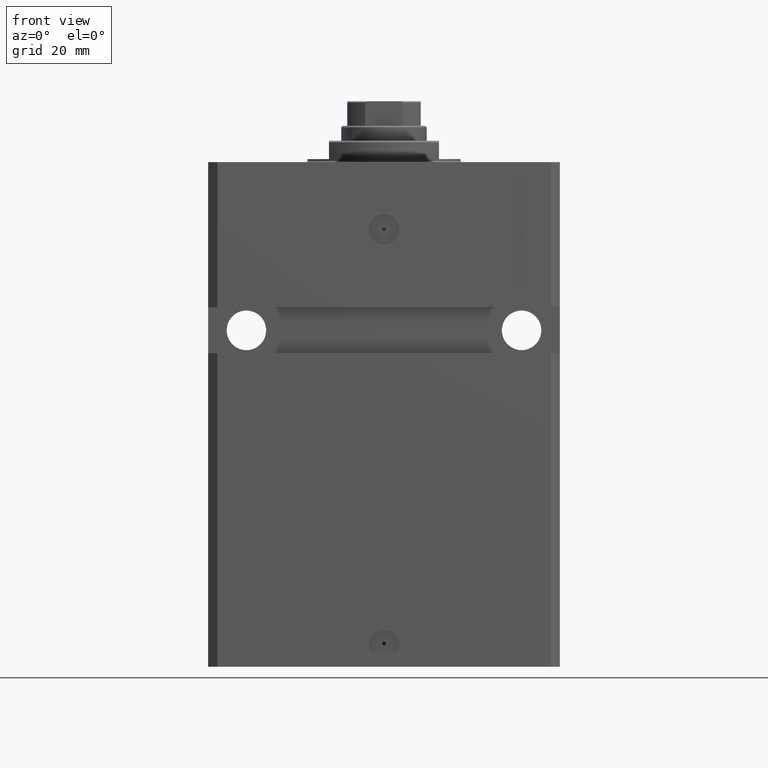
[diagram: clean part render]
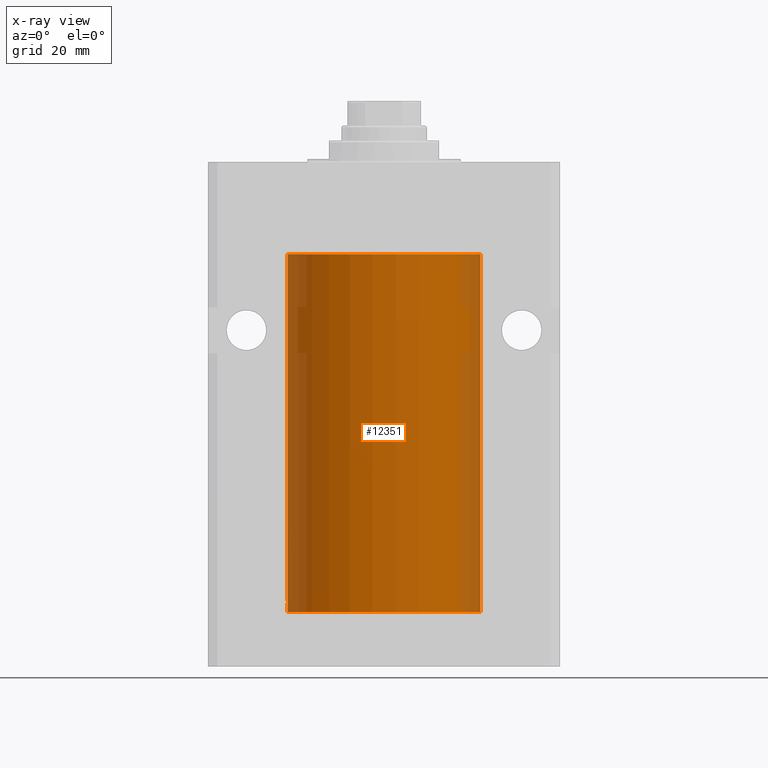
[diagram: x-ray — body ghosted, one internal face saturated and labeled with its STEP entity id]
A machine part, front view, then the same camera in x-ray: the body is ghosted and one INTERNAL B-rep face — a face not visible from any outside direction — is saturated and labeled: STEP entity #12351.
In plain terms, the highlighted cylindrical surface (partial cylindrical patch) has radius 31.5 mm, axis along (0, 0, 1).
Its self-contained STEP definition (entity closure, byte-faithful):
#16 = DIRECTION ( 'NONE',  ( -0.000000000000000000, -0.000000000000000000, 1.000000000000000000 ) ) ;
#436 = CARTESIAN_POINT ( 'NONE',  ( -31.50000000000000000, 3.857637417314162689E-15, -147.1000000000000227 ) ) ;
#2149 = CARTESIAN_POINT ( 'NONE',  ( 31.50000000000006395, 3.442404271195566139E-13, -143.3749999999967883 ) ) ;
#2391 = CARTESIAN_POINT ( 'NONE',  ( 31.49528358446201892, -0.5571510427948052069, -143.6732007340060306 ) ) ;
#2846 = ORIENTED_EDGE ( 'NONE', *, *, #27661, .F. ) ;
#2967 = CARTESIAN_POINT ( 'NONE',  ( -31.50000000000006395, 3.480980645563073824E-13, -144.6250000000032401 ) ) ;
#3008 = CARTESIAN_POINT ( 'NONE',  ( 31.50000000000000000, 0.000000000000000000, -147.1000000000000227 ) ) ;
#3025 = CARTESIAN_POINT ( 'NONE',  ( 31.50000000000000000, 3.210795403918932462E-15, -144.6250000000000284 ) ) ;
#3951 = CARTESIAN_POINT ( 'NONE',  ( 31.49527967292564057, -0.5573624224366721114, -144.3264531259596311 ) ) ;
#4008 = EDGE_CURVE ( 'NONE', #18100, #14623, #42110, .T. ) ;
#4680 = VERTEX_POINT ( 'NONE', #11530 ) ;
#4834 = ORIENTED_EDGE ( 'NONE', *, *, #23110, .T. ) ;
#4903 = VERTEX_POINT ( 'NONE', #3025 ) ;
#5067 = DIRECTION ( 'NONE',  ( 0.000000000000000000, 0.000000000000000000, 1.000000000000000000 ) ) ;
#6338 = AXIS2_PLACEMENT_3D ( 'NONE', #40540, #33057, #48488 ) ;
#6569 = ORIENTED_EDGE ( 'NONE', *, *, #23771, .F. ) ;
#8119 = DIRECTION ( 'NONE',  ( -0.000000000000000000, -0.000000000000000000, 1.000000000000000000 ) ) ;
#10387 = CARTESIAN_POINT ( 'NONE',  ( -31.49528704891774211, -0.5569519313505124636, -144.3270938121662823 ) ) ;
#10645 = CARTESIAN_POINT ( 'NONE',  ( 31.50000000000000000, 0.000000000000000000, -30.10000000000000142 ) ) ;
#11126 = EDGE_CURVE ( 'NONE', #45179, #18100, #12515, .T. ) ;
#11245 = ORIENTED_EDGE ( 'NONE', *, *, #40451, .T. ) ;
#11530 = CARTESIAN_POINT ( 'NONE',  ( 31.50000000000006395, 3.442404271195566139E-13, -143.3749999999967883 ) ) ;
#12351 = ADVANCED_FACE ( 'NONE', ( #27903 ), #20672, .F. ) ;
#12515 = LINE ( 'NONE', #38417, #48664 ) ;
#13290 = VECTOR ( 'NONE', #16, 1000.000000000000000 ) ;
#13457 = CARTESIAN_POINT ( 'NONE',  ( 31.49379899281761652, -0.6250000000000300870, -144.0000000000000284 ) ) ;
#13830 = CARTESIAN_POINT ( 'NONE',  ( 31.49379899281761652, -0.6250000000000300870, -144.0000000000000284 ) ) ;
#14581 = EDGE_CURVE ( 'NONE', #31514, #4903, #24576, .T. ) ;
#14623 = VERTEX_POINT ( 'NONE', #10645 ) ;
#14839 = CARTESIAN_POINT ( 'NONE',  ( -31.50000000000000000, -1.368427456661360094E-15, -143.3750000000000000 ) ) ;
#15719 = EDGE_LOOP ( 'NONE', ( #2846, #22964, #11245, #24905, #25113, #6569, #4834, #24359, #16400 ) ) ;
#16400 = ORIENTED_EDGE ( 'NONE', *, *, #14581, .F. ) ;
#16859 = CARTESIAN_POINT ( 'NONE',  ( 31.50000000000000000, 0.000000000000000000, -147.1000000000000227 ) ) ;
#16977 = DIRECTION ( 'NONE',  ( 1.000000000000000000, 0.000000000000000000, 0.000000000000000000 ) ) ;
#18100 = VERTEX_POINT ( 'NONE', #28479 ) ;
#18321 = CARTESIAN_POINT ( 'NONE',  ( -31.49851430197701063, -0.3269482044720625757, -143.4429011246694188 ) ) ;
#20427 = CARTESIAN_POINT ( 'NONE',  ( 0.000000000000000000, 0.000000000000000000, -147.1000000000000227 ) ) ;
#20672 = CYLINDRICAL_SURFACE ( 'NONE', #32818, 31.50000000000000000 ) ;
#21419 = CARTESIAN_POINT ( 'NONE',  ( -31.50000000000000000, -1.368427456661360094E-15, -143.3750000000000000 ) ) ;
#22828 = CARTESIAN_POINT ( 'NONE',  ( 31.50000000000000000, -0.1650602271992174519, -144.6250000000000568 ) ) ;
#22964 = ORIENTED_EDGE ( 'NONE', *, *, #26541, .T. ) ;
#22985 = VECTOR ( 'NONE', #8119, 1000.000000000000000 ) ;
#23110 = EDGE_CURVE ( 'NONE', #4680, #23663, #46753, .T. ) ;
#23663 = VERTEX_POINT ( 'NONE', #13457 ) ;
#23771 = EDGE_CURVE ( 'NONE', #4680, #14623, #36854, .T. ) ;
#23914 = DIRECTION ( 'NONE',  ( 1.000000000000000000, 0.000000000000000000, 0.000000000000000000 ) ) ;
#24359 = ORIENTED_EDGE ( 'NONE', *, *, #32570, .T. ) ;
#24576 = LINE ( 'NONE', #16859, #45630 ) ;
#24905 = ORIENTED_EDGE ( 'NONE', *, *, #11126, .T. ) ;
#25113 = ORIENTED_EDGE ( 'NONE', *, *, #4008, .T. ) ;
#25556 = CARTESIAN_POINT ( 'NONE',  ( -31.49999999999999289, -0.1651478413230000331, -143.3749999999999716 ) ) ;
#26541 = EDGE_CURVE ( 'NONE', #47525, #32409, #33508, .T. ) ;
#27299 = CARTESIAN_POINT ( 'NONE',  ( 31.49379899281761652, -0.6250000000000300870, -144.0000000000000284 ) ) ;
#27661 = EDGE_CURVE ( 'NONE', #47525, #31514, #42936, .T. ) ;
#27903 = FACE_OUTER_BOUND ( 'NONE', #15719, .T. ) ;
#28074 = DIRECTION ( 'NONE',  ( -0.000000000000000000, -0.000000000000000000, 1.000000000000000000 ) ) ;
#28479 = CARTESIAN_POINT ( 'NONE',  ( -31.50000000000000000, 3.857637417314162689E-15, -30.10000000000000142 ) ) ;
#28520 = B_SPLINE_CURVE_WITH_KNOTS ( 'NONE', 3,
 ( #34006, #30270, #45221, #10387, #49181, #30022, #48451, #18321, #25556, #14839 ),
 .UNSPECIFIED., .F., .F.,
 ( 4, 2, 2, 2, 4 ),
 ( 0.001954083649707802437, 0.002442494148669407429, 0.002930904647631011987, 0.003419315146592616979, 0.003907725645554221972 ),
 .UNSPECIFIED. ) ;
#28751 = CARTESIAN_POINT ( 'NONE',  ( 31.50000000000000711, -0.1632157801386604767, -143.3749999999998579 ) ) ;
#29002 = CARTESIAN_POINT ( 'NONE',  ( 31.49379899281761652, -0.6250000000000300870, -143.8350496352848040 ) ) ;
#30022 = CARTESIAN_POINT ( 'NONE',  ( -31.49379625064871391, -0.6251381781549149030, -143.8356839311847182 ) ) ;
#30270 = CARTESIAN_POINT ( 'NONE',  ( -31.50000000000000000, -0.1631292369235461670, -144.6250000000001705 ) ) ;
#30691 = DIRECTION ( 'NONE',  ( -0.000000000000000000, -0.000000000000000000, 1.000000000000000000 ) ) ;
#31025 = CARTESIAN_POINT ( 'NONE',  ( 31.49851597466318864, -0.3267811800504842323, -144.5571701479423155 ) ) ;
#31514 = VERTEX_POINT ( 'NONE', #40290 ) ;
#32409 = VERTEX_POINT ( 'NONE', #2967 ) ;
#32570 = EDGE_CURVE ( 'NONE', #23663, #4903, #36713, .T. ) ;
#32818 = AXIS2_PLACEMENT_3D ( 'NONE', #20427, #38872, #23914 ) ;
#33057 = DIRECTION ( 'NONE',  ( 0.000000000000000000, 0.000000000000000000, 1.000000000000000000 ) ) ;
#33508 = LINE ( 'NONE', #436, #22985 ) ;
#34006 = CARTESIAN_POINT ( 'NONE',  ( -31.50000000000006395, 3.480980645563073824E-13, -144.6250000000032401 ) ) ;
#34289 = CARTESIAN_POINT ( 'NONE',  ( 31.50000000000000000, 3.210795403918932462E-15, -144.6250000000000284 ) ) ;
#36713 = B_SPLINE_CURVE_WITH_KNOTS ( 'NONE', 3,
 ( #27299, #42984, #3951, #31025, #22828, #34289 ),
 .UNSPECIFIED., .F., .F.,
 ( 4, 2, 4 ),
 ( 0.002931422870062076573, 0.003419574257808121083, 0.003907725645554165593 ),
 .UNSPECIFIED. ) ;
#36854 = LINE ( 'NONE', #3008, #13290 ) ;
#38417 = CARTESIAN_POINT ( 'NONE',  ( -31.50000000000000000, 3.857637417314162689E-15, -147.1000000000000227 ) ) ;
#38872 = DIRECTION ( 'NONE',  ( -0.000000000000000000, -0.000000000000000000, 1.000000000000000000 ) ) ;
#39734 = AXIS2_PLACEMENT_3D ( 'NONE', #43629, #5067, #16977 ) ;
#40290 = CARTESIAN_POINT ( 'NONE',  ( 31.50000000000000000, 0.000000000000000000, -147.1000000000000227 ) ) ;
#40451 = EDGE_CURVE ( 'NONE', #32409, #45179, #28520, .T. ) ;
#40540 = CARTESIAN_POINT ( 'NONE',  ( 0.000000000000000000, 0.000000000000000000, -30.10000000000000142 ) ) ;
#40704 = CARTESIAN_POINT ( 'NONE',  ( 31.49851930977803960, -0.3264760966897971572, -143.4426595268315339 ) ) ;
#42110 = CIRCLE ( 'NONE', #6338, 31.50000000000000000 ) ;
#42936 = CIRCLE ( 'NONE', #39734, 31.50000000000000000 ) ;
#42984 = CARTESIAN_POINT ( 'NONE',  ( 31.49379899281760942, -0.6250000000000300870, -144.1647754387996088 ) ) ;
#43629 = CARTESIAN_POINT ( 'NONE',  ( 0.000000000000000000, 0.000000000000000000, -147.1000000000000227 ) ) ;
#44723 = CARTESIAN_POINT ( 'NONE',  ( -31.50000000000000000, 3.857637417314162689E-15, -147.1000000000000227 ) ) ;
#45179 = VERTEX_POINT ( 'NONE', #21419 ) ;
#45221 = CARTESIAN_POINT ( 'NONE',  ( -31.49852099238383119, -0.3263081977449492910, -144.5574125724066903 ) ) ;
#45630 = VECTOR ( 'NONE', #28074, 1000.000000000000000 ) ;
#46753 = B_SPLINE_CURVE_WITH_KNOTS ( 'NONE', 3,
 ( #2149, #28751, #40704, #2391, #29002, #13830 ),
 .UNSPECIFIED., .F., .F.,
 ( 4, 2, 4 ),
 ( 0.001954083649707734349, 0.002442753259884905461, 0.002931422870062076573 ),
 .UNSPECIFIED. ) ;
#47525 = VERTEX_POINT ( 'NONE', #44723 ) ;
#48451 = CARTESIAN_POINT ( 'NONE',  ( -31.49527619204366857, -0.5575625051463340975, -143.6738430774043422 ) ) ;
#48488 = DIRECTION ( 'NONE',  ( 1.000000000000000000, 0.000000000000000000, 0.000000000000000000 ) ) ;
#48664 = VECTOR ( 'NONE', #30691, 1000.000000000000000 ) ;
#49181 = CARTESIAN_POINT ( 'NONE',  ( -31.49380174372966223, -0.6248613812773761156, -144.1653655539884085 ) ) ;